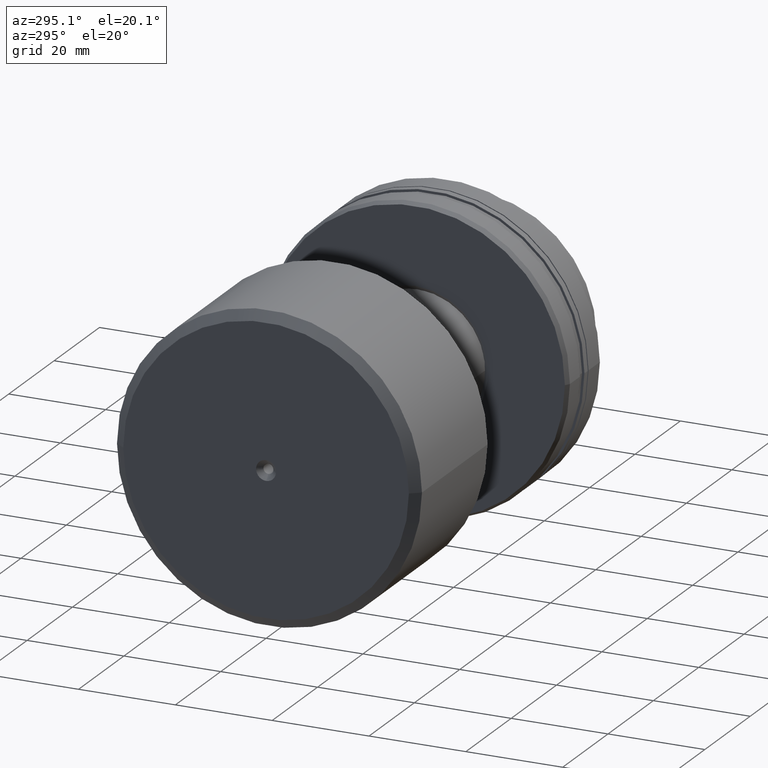
[diagram: clean part render]
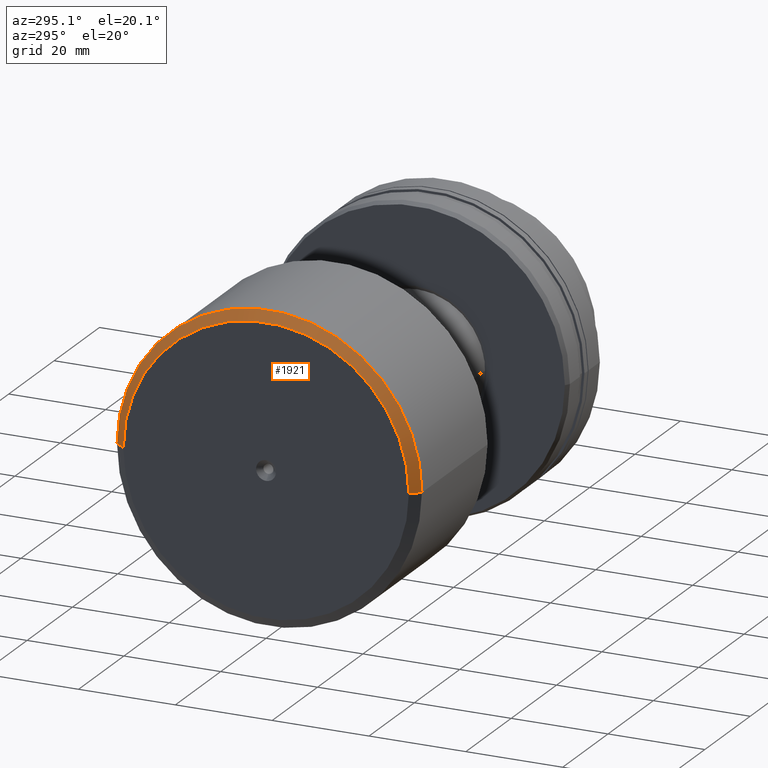
[diagram: same view with one face highlighted and labeled with its STEP entity id]
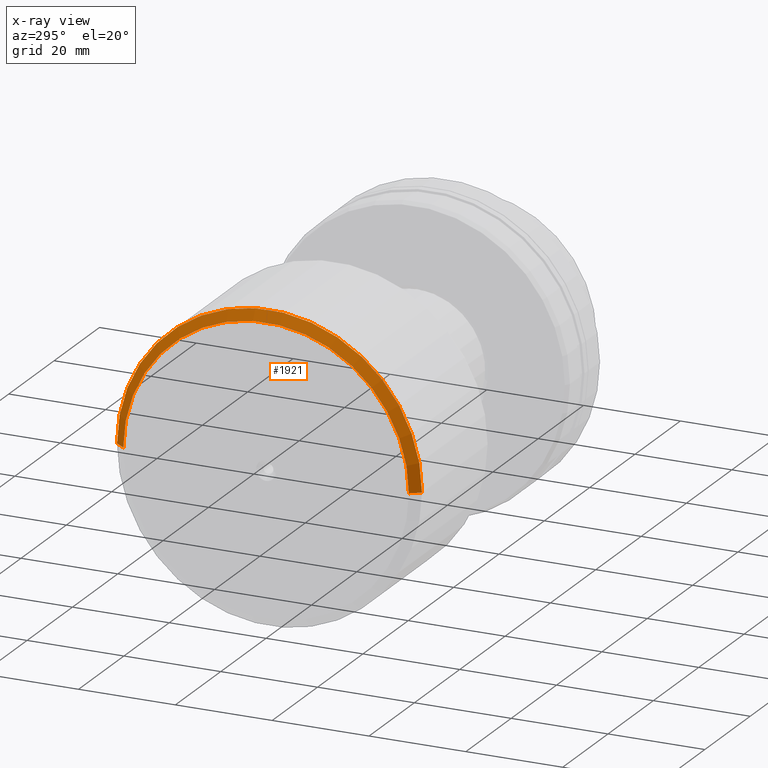
[diagram: x-ray of the same camera — body ghosted, the highlighted face saturated]
A machine part, auxiliary view. The second image highlights one B-rep face of the part: STEP entity #1921.
The next image is the same camera in x-ray: the body ghosted, the highlighted face saturated — about 0% of this face is hidden behind the body in this view.
In plain terms, the highlighted conical surface has half-angle 53.13 deg.
Its self-contained STEP definition (entity closure, byte-faithful):
#7 = VECTOR ( 'NONE', #1289, 1000.000000000000000 ) ;
#25 = AXIS2_PLACEMENT_3D ( 'NONE', #1243, #2298, #716 ) ;
#41 = LINE ( 'NONE', #751, #7 ) ;
#43 = CARTESIAN_POINT ( 'NONE',  ( 1.500000000000003775, -31.50000000000000000, 3.857637417314162689E-15 ) ) ;
#136 = CARTESIAN_POINT ( 'NONE',  ( 1.500000000000003331, 31.50000000000000000, 0.000000000000000000 ) ) ;
#142 = EDGE_CURVE ( 'NONE', #1496, #1809, #41, .T. ) ;
#155 = CARTESIAN_POINT ( 'NONE',  ( 2.981678087463943057E-15, 29.50000000000000000, 0.000000000000000000 ) ) ;
#250 = CIRCLE ( 'NONE', #815, 31.50000000000000000 ) ;
#257 = VECTOR ( 'NONE', #1407, 1000.000000000000000 ) ;
#408 = DIRECTION ( 'NONE',  ( 1.376764663473656463E-17, -1.000000000000000000, 0.000000000000000000 ) ) ;
#515 = AXIS2_PLACEMENT_3D ( 'NONE', #1549, #824, #1537 ) ;
#650 = EDGE_CURVE ( 'NONE', #1496, #2004, #1671, .T. ) ;
#709 = CARTESIAN_POINT ( 'NONE',  ( 2.981678087463943057E-15, 29.50000000000000000, 0.000000000000000000 ) ) ;
#714 = ORIENTED_EDGE ( 'NONE', *, *, #650, .F. ) ;
#716 = DIRECTION ( 'NONE',  ( 1.069542322069065647E-17, -1.000000000000000000, 0.000000000000000000 ) ) ;
#751 = CARTESIAN_POINT ( 'NONE',  ( 3.612708057484691604E-15, -29.50000000000000000, 3.612708057484691604E-15 ) ) ;
#815 = AXIS2_PLACEMENT_3D ( 'NONE', #966, #2011, #408 ) ;
#824 = DIRECTION ( 'NONE',  ( 1.000000000000000000, 1.069542322069065801E-17, 0.000000000000000000 ) ) ;
#901 = ORIENTED_EDGE ( 'NONE', *, *, #1622, .F. ) ;
#966 = CARTESIAN_POINT ( 'NONE',  ( 1.500000000000003553, 1.604313483103602168E-17, 0.000000000000000000 ) ) ;
#1021 = CARTESIAN_POINT ( 'NONE',  ( 3.612708057484691604E-15, -29.50000000000000000, 3.735172737399426752E-15 ) ) ;
#1039 = ORIENTED_EDGE ( 'NONE', *, *, #2244, .T. ) ;
#1043 = LINE ( 'NONE', #155, #257 ) ;
#1066 = ORIENTED_EDGE ( 'NONE', *, *, #142, .T. ) ;
#1207 = FACE_OUTER_BOUND ( 'NONE', #1881, .T. ) ;
#1243 = CARTESIAN_POINT ( 'NONE',  ( 3.297193072474317133E-15, 3.526487535044219306E-32, 0.000000000000000000 ) ) ;
#1289 = DIRECTION ( 'NONE',  ( 0.5999999999999996447, -0.8000000000000002665, 9.797174393178828616E-17 ) ) ;
#1407 = DIRECTION ( 'NONE',  ( 0.5999999999999996447, 0.8000000000000002665, 0.000000000000000000 ) ) ;
#1496 = VERTEX_POINT ( 'NONE', #1021 ) ;
#1537 = DIRECTION ( 'NONE',  ( -1.069542322069065647E-17, 1.000000000000000000, 0.000000000000000000 ) ) ;
#1549 = CARTESIAN_POINT ( 'NONE',  ( 3.297193072474317133E-15, 3.526487535044219306E-32, 0.000000000000000000 ) ) ;
#1622 = EDGE_CURVE ( 'NONE', #2004, #1831, #1043, .T. ) ;
#1671 = CIRCLE ( 'NONE', #25, 29.50000000000000000 ) ;
#1706 = CONICAL_SURFACE ( 'NONE', #515, 29.50000000000000000, 0.9272952180016126311 ) ;
#1809 = VERTEX_POINT ( 'NONE', #43 ) ;
#1831 = VERTEX_POINT ( 'NONE', #136 ) ;
#1881 = EDGE_LOOP ( 'NONE', ( #714, #1066, #1039, #901 ) ) ;
#1921 = ADVANCED_FACE ( 'NONE', ( #1207 ), #1706, .T. ) ;
#2004 = VERTEX_POINT ( 'NONE', #709 ) ;
#2011 = DIRECTION ( 'NONE',  ( -1.000000000000000000, -1.069542322069065801E-17, -0.000000000000000000 ) ) ;
#2244 = EDGE_CURVE ( 'NONE', #1809, #1831, #250, .T. ) ;
#2298 = DIRECTION ( 'NONE',  ( -1.000000000000000000, -1.069542322069065801E-17, -0.000000000000000000 ) ) ;